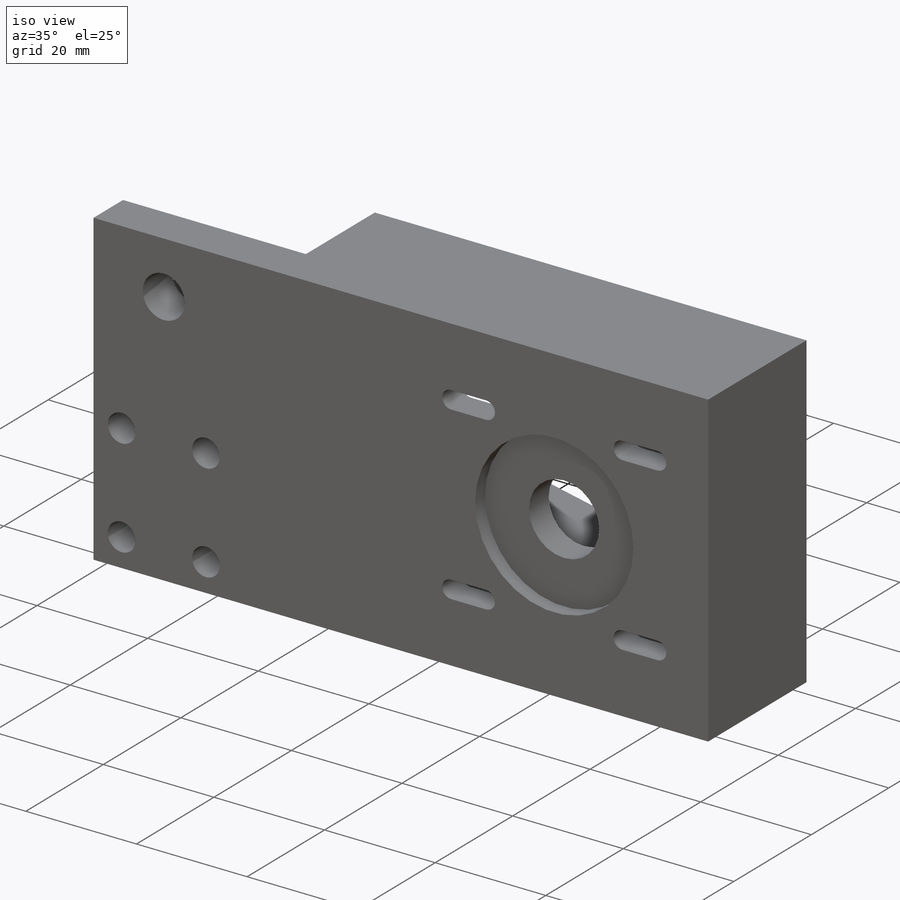
[diagram: iso view]
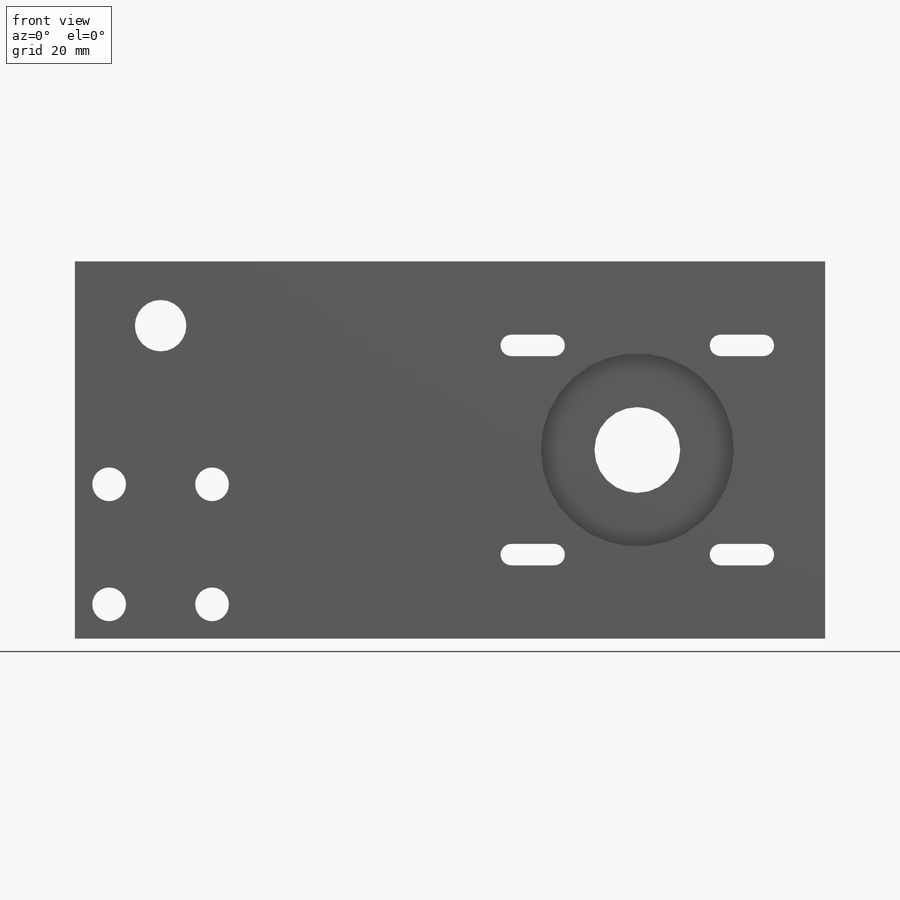
[diagram: front view]
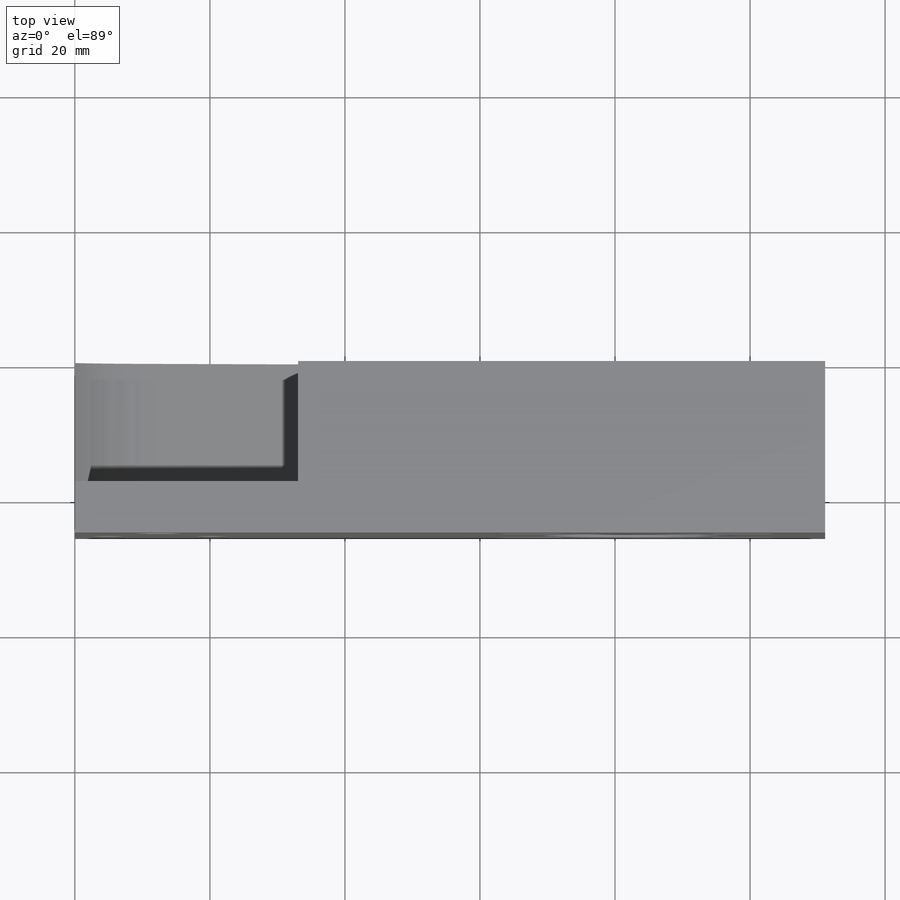
[diagram: top view]
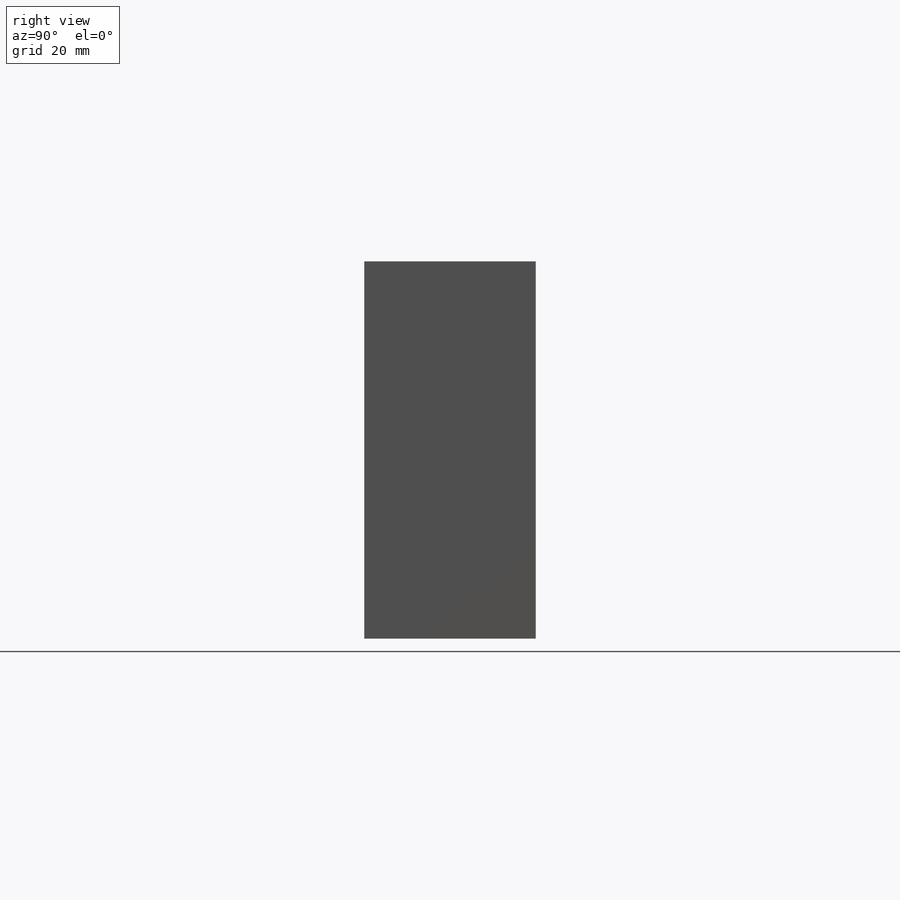
[diagram: right view]
SOLIDWORKS PART (.sldprt)
format: sldprt  version: not decoded by parser v0  size: 355,328 bytes
history: native  units: mm
features: sketch x8, cut_extrude x7, material x1, extrude x1, plane x1 (+12 scaffold rows collapsed)
feature tree (30):
  scaffold x12  (default folders/planes/origin — collapsed)
  material  "Material <not specified>"
  sketch  "Sketch2"  dims[D3=7.62mm D11=1.5875mm D1=55.88mm D2=111.125mm D4=9.525mm D5=12.7mm D6=~72.96912mm D7=30.988mm D8=30.988mm D9=43.18mm D10=43.18mm D12=6.35mm D13=2.0 D14=2.0]
  extrude  "Boss-Extrude1"  Depth=25.4mm
  plane  "Center Plane"
  sketch  "Sketch4"  dims[D1=30.48mm D3=9.525mm D2=6.35mm]
  cut_extrude  "Cut-Extrude2"  Depth=17.78mm
  sketch  "Sketch5"  dims[D1=0.0mm]
  cut_extrude  "Cut-Extrude3"  Depth=17.78mm
  sketch  "Sketch6"  dims[D1=12.7mm]
  cut_extrude  "Cut-Extrude4"  Depth=20.32mm
  sketch  "Sketch7"  dims[D1=28.6004mm]
  cut_extrude  "Cut-Extrude5"  Depth=2.54mm
  sketch  "Sketch8"  dims[D1=12.7mm]
  cut_extrude  "Cut-Extrude6"  [1 undecoded]
  sketch  "Sketch9"  dims[D1=22.86mm]
  cut_extrude  "Cut-Extrude7"  Depth=17.78mm
  sketch  "Sketch10"  dims[D1=5.0mm D2=5.08mm D3=5.08mm D4=2.0 D5=2.0]
  cut_extrude  "Cut-Extrude8"  [1 undecoded]
decode coverage: 14 of 16 modeling features carry decoded parameters
note: ~ marks probable driven/reference dimensions
note: 2 parameter values undecoded
note: suppression state not decoded; provenance and decode notes live in map.json
